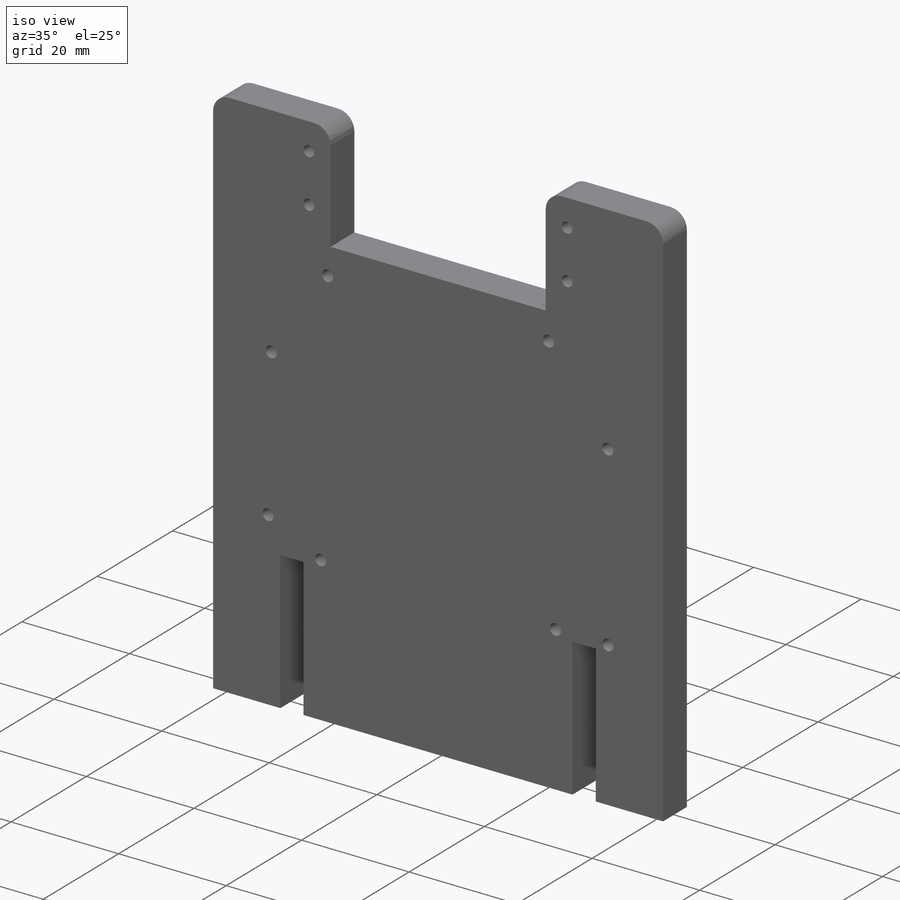
[diagram: iso view]
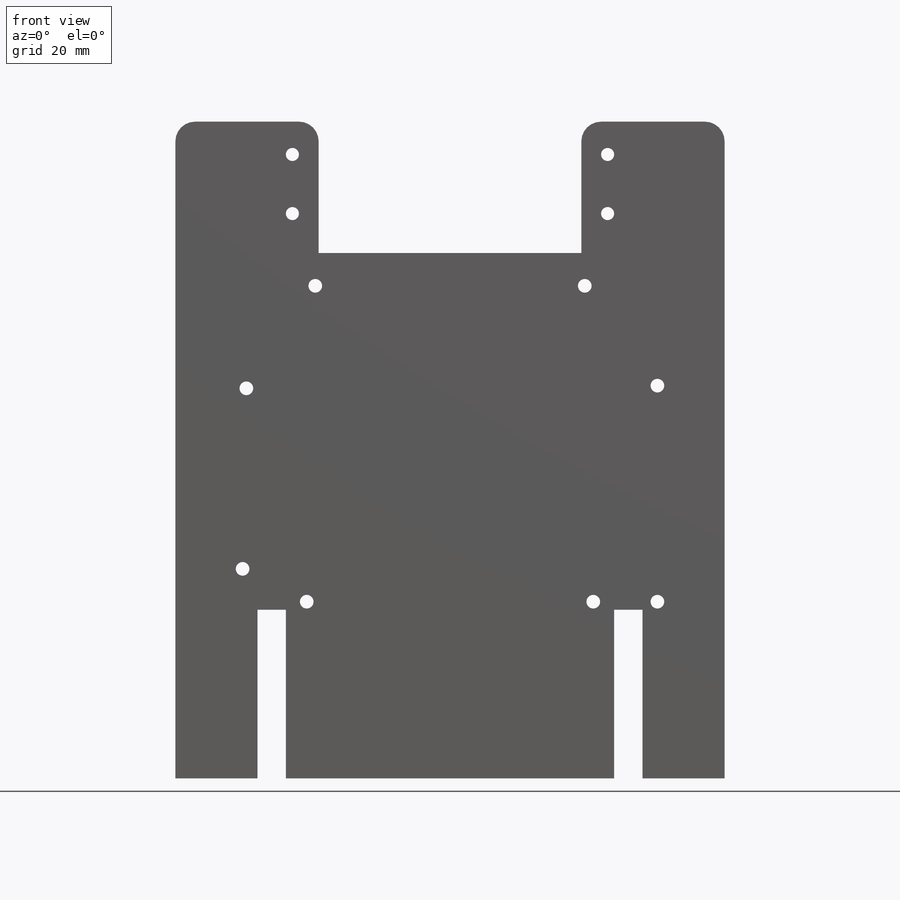
[diagram: front view]
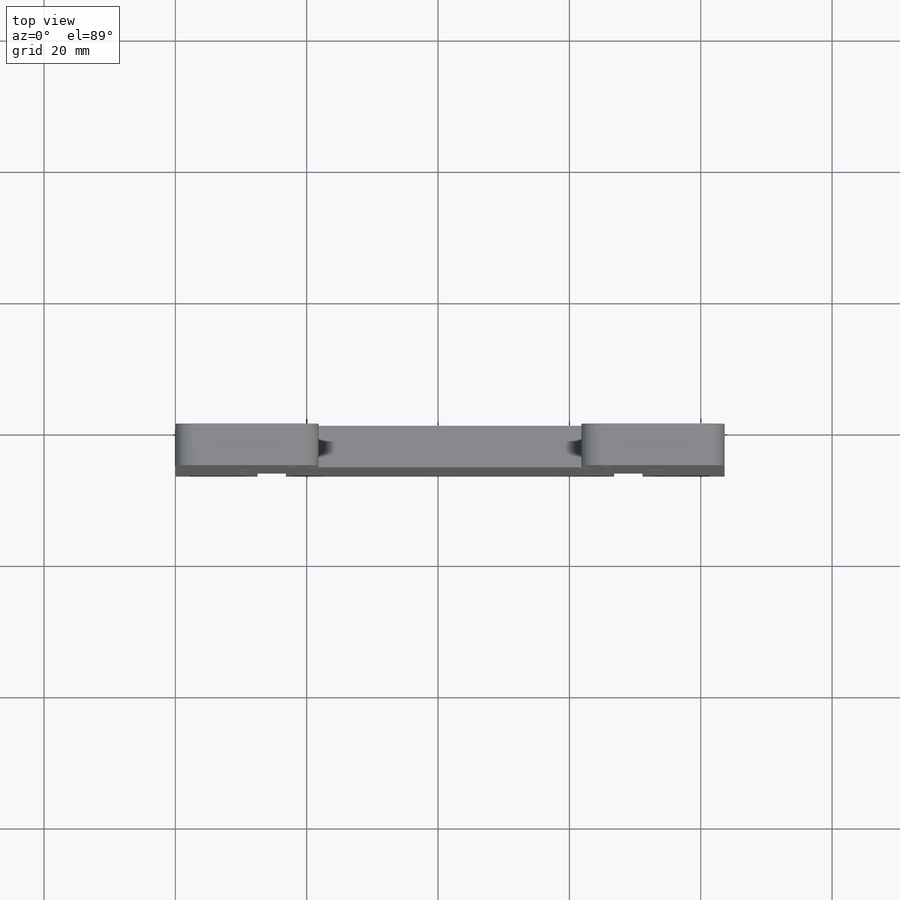
[diagram: top view]
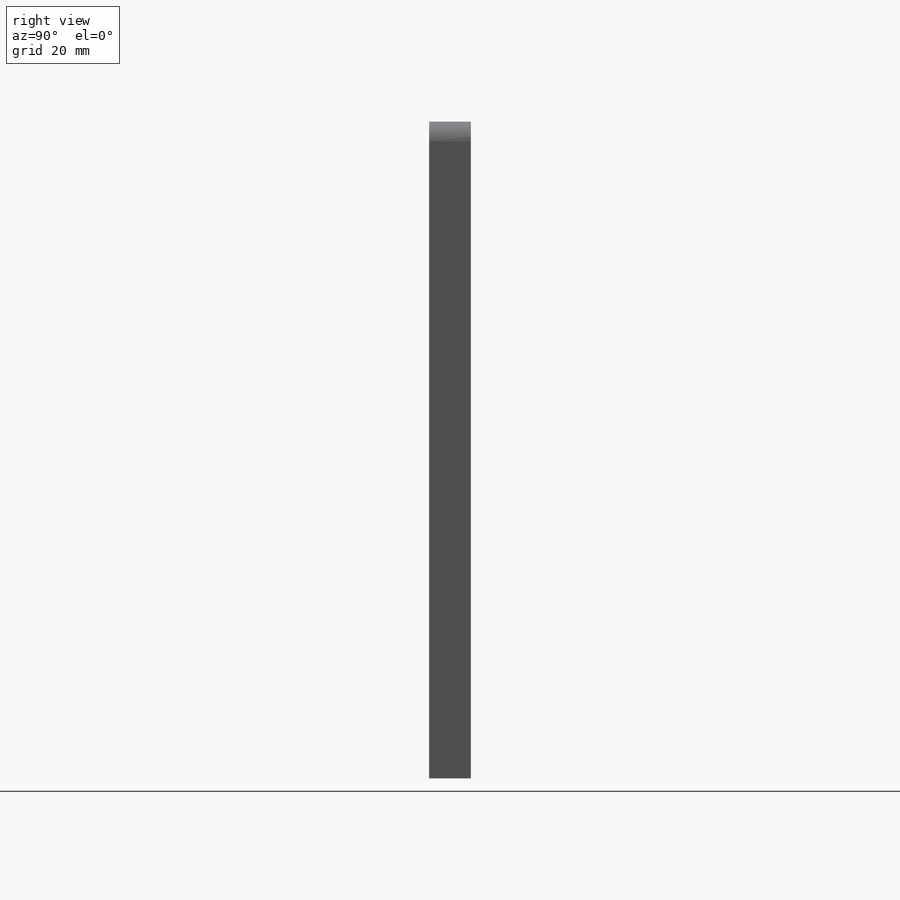
[diagram: right view]
SOLIDWORKS PART (.sldprt)
format: sldprt  version: not decoded by parser v0  size: 491,520 bytes
history: native  units: mm
features: thread x12, sketch x7, hole x2, material x1, extrude x1, fillet x1 (+11 scaffold rows collapsed)
feature tree (35):
  scaffold x11  (default folders/planes/origin — collapsed)
  material  "Balsa"
  sketch  "Sketch1"  dims[c1.D1=80.0mm c1.D2=100.0mm c1.D3=20.0mm c1.D4=20.0mm c1.D5=4.318mm c1.D6=25.68mm c1.D7=50.0mm c1.D8=30.0mm c2.D1=50.0mm c2.D7=12.5mm c2.D3=40.0mm c2.D8=25.68mm]
  extrude  "main shape"  Depth=6.35mm
  fillet  "Fillet1"  Radius=3mm
  sketch  "locations for shoulder servo mount"  dims[c1.D1=60.0mm c1.D2=9.0mm c1.D3=5.0mm c1.D4=10.0mm c2.D1=48.0mm c2.D4=10.0mm]
  hole  "#3-48 Tapped Hole1"  Diameter=1.9939mm Depth=6.61mm
  sketch  "Sketch4"
  sketch  "Sketch3"  dims[hole-wizard template sketch: 47 standard entries collapsed; hole parameters kept: c15.Tap Drill Depth=6.61mm c15.D3=~14.816244mm c15.Drill Angle=118.0deg]
  thread  "Hole Thread1"  Diameter=5.03mm  [1 undecoded]
  thread  "Hole Thread2"  Diameter=5.03mm  [1 undecoded]
  thread  "Hole Thread3"  Diameter=5.03mm  [1 undecoded]
  thread  "Hole Thread4"  Diameter=5.03mm  [1 undecoded]
  sketch  "arduino mount holes"  dims[c1.D1=52.1mm c1.D2=15.24mm c1.D3=27.94mm c1.D4=1.27mm c1.D5=5.0mm c1.D6=20.0mm c1.D7=20.0mm c1.D8=52.1mm c2.D4=1.3mm c2.D9=5.0mm c2.D10=27.9mm c2.D2=15.2mm c2.D3=1.3mm c3.D4=15.2mm c3.D11=5.0mm c3.D12=27.9mm]
  hole  "#3-48 Tapped Hole1 for arduino mount"  Diameter=2.0828mm Depth=7.3mm
  sketch  "Sketch7"
  sketch  "Sketch6"  dims[hole-wizard template sketch: 46 standard entries collapsed; hole parameters kept: c15.Tap Drill Dia.=2.0828mm c15.Tap Drill Depth=7.3mm c15.D3=~14.816244mm c15.Drill Angle=118.0deg]
  thread  "Hole Thread5"  Diameter=5.03mm  [1 undecoded]
  thread  "Hole Thread6"  Diameter=5.03mm  [1 undecoded]
  thread  "Hole Thread7"  Diameter=5.03mm  [1 undecoded]
  thread  "Hole Thread8"  Diameter=5.03mm  [1 undecoded]
  thread  "Hole Thread9"  Diameter=5.03mm  [1 undecoded]
  thread  "Hole Thread10"  Diameter=5.03mm  [1 undecoded]
  thread  "Hole Thread12"  Diameter=5.03mm  [1 undecoded]
  thread  "Hole Thread13"  Diameter=5.03mm  [1 undecoded]
decode coverage: 21 of 23 modeling features carry decoded parameters
note: ~ marks probable driven/reference dimensions
note: 12 parameter values undecoded
note: suppression state not decoded; provenance and decode notes live in map.json
